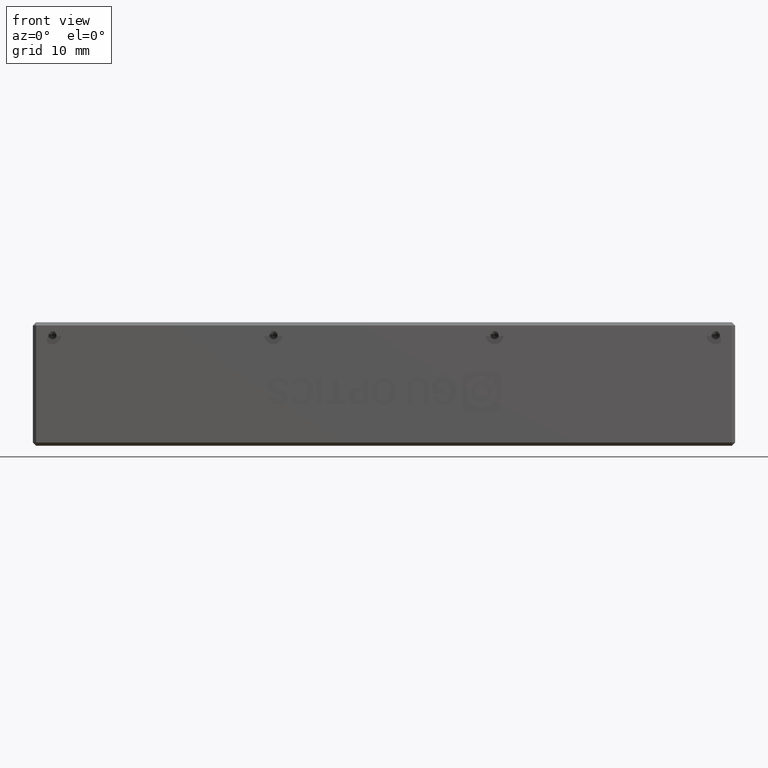
[diagram: clean part render]
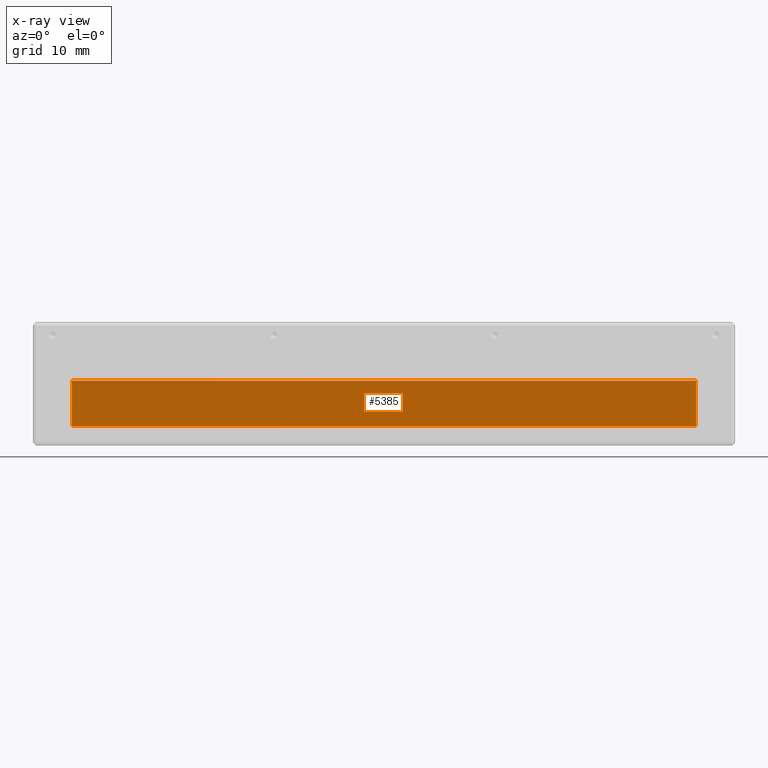
[diagram: x-ray — body ghosted, one internal face saturated and labeled with its STEP entity id]
A machine part, front view, then the same camera in x-ray: the body is ghosted and one INTERNAL B-rep face — a face not visible from any outside direction — is saturated and labeled: STEP entity #5385.
In plain terms, the highlighted planar face has unit normal (-0, 1, 0).
Its self-contained STEP definition (entity closure, byte-faithful):
#688 = CARTESIAN_POINT ( 'NONE',  ( -32.08835582942099800, 8.321478873239424700, -9.000000000000001800 ) ) ;
#1452 = CARTESIAN_POINT ( 'NONE',  ( 63.91164417057898800, 8.321478873239424700, -9.000000000000001800 ) ) ;
#2016 = VECTOR ( 'NONE', #15017, 1000.000000000000000 ) ;
#2684 = EDGE_CURVE ( 'NONE', #6078, #14470, #3829, .T. ) ;
#3446 = CARTESIAN_POINT ( 'NONE',  ( 63.91164417057898800, 8.321478873239424700, -6.000000000000001800 ) ) ;
#3829 = LINE ( 'NONE', #9851, #2016 ) ;
#4092 = ORIENTED_EDGE ( 'NONE', *, *, #4826, .F. ) ;
#4107 = PLANE ( 'NONE',  #10398 ) ;
#4762 = ORIENTED_EDGE ( 'NONE', *, *, #10297, .F. ) ;
#4826 = EDGE_CURVE ( 'NONE', #6078, #17303, #20933, .T. ) ;
#4916 = CARTESIAN_POINT ( 'NONE',  ( -32.08835582942099800, 8.321478873239424700, 0.9999999999999991100 ) ) ;
#5385 = ADVANCED_FACE ( 'NONE', ( #17240 ), #4107, .F. ) ;
#6078 = VERTEX_POINT ( 'NONE', #18930 ) ;
#6264 = EDGE_LOOP ( 'NONE', ( #17026, #15481, #4762, #4092 ) ) ;
#8931 = CARTESIAN_POINT ( 'NONE',  ( -32.08835582942099800, 8.321478873239424700, -9.000000000000001800 ) ) ;
#9851 = CARTESIAN_POINT ( 'NONE',  ( 69.91164417057902400, 8.321478873239424700, -6.000000000000001800 ) ) ;
#10297 = EDGE_CURVE ( 'NONE', #17303, #14385, #20171, .T. ) ;
#10398 = AXIS2_PLACEMENT_3D ( 'NONE', #8931, #20609, #10594 ) ;
#10594 = DIRECTION ( 'NONE',  ( 0.0000000000000000000, -0.0000000000000000000, 1.000000000000000000 ) ) ;
#13367 = CARTESIAN_POINT ( 'NONE',  ( 65.91164417057898100, 8.321478873239424700, 0.9999999999999991100 ) ) ;
#13409 = CARTESIAN_POINT ( 'NONE',  ( 63.91164417057898800, 8.321478873239424700, 0.9999999999999991100 ) ) ;
#14385 = VERTEX_POINT ( 'NONE', #13409 ) ;
#14470 = VERTEX_POINT ( 'NONE', #3446 ) ;
#14799 = DIRECTION ( 'NONE',  ( -0.0000000000000000000, 0.0000000000000000000, -1.000000000000000000 ) ) ;
#15017 = DIRECTION ( 'NONE',  ( 1.000000000000000000, 0.0000000000000000000, -0.0000000000000000000 ) ) ;
#15481 = ORIENTED_EDGE ( 'NONE', *, *, #18037, .F. ) ;
#17026 = ORIENTED_EDGE ( 'NONE', *, *, #2684, .T. ) ;
#17240 = FACE_OUTER_BOUND ( 'NONE', #6264, .T. ) ;
#17303 = VERTEX_POINT ( 'NONE', #4916 ) ;
#18037 = EDGE_CURVE ( 'NONE', #14385, #14470, #19833, .T. ) ;
#18041 = VECTOR ( 'NONE', #14799, 1000.000000000000000 ) ;
#18609 = VECTOR ( 'NONE', #20748, 1000.000000000000000 ) ;
#18930 = CARTESIAN_POINT ( 'NONE',  ( -32.08835582942099800, 8.321478873239424700, -6.000000000000001800 ) ) ;
#19833 = LINE ( 'NONE', #1452, #18041 ) ;
#19844 = DIRECTION ( 'NONE',  ( 1.000000000000000000, 0.0000000000000000000, -0.0000000000000000000 ) ) ;
#20171 = LINE ( 'NONE', #13367, #21222 ) ;
#20609 = DIRECTION ( 'NONE',  ( -0.0000000000000000000, 1.000000000000000000, 0.0000000000000000000 ) ) ;
#20748 = DIRECTION ( 'NONE',  ( 0.0000000000000000000, -0.0000000000000000000, 1.000000000000000000 ) ) ;
#20933 = LINE ( 'NONE', #688, #18609 ) ;
#21222 = VECTOR ( 'NONE', #19844, 1000.000000000000000 ) ;